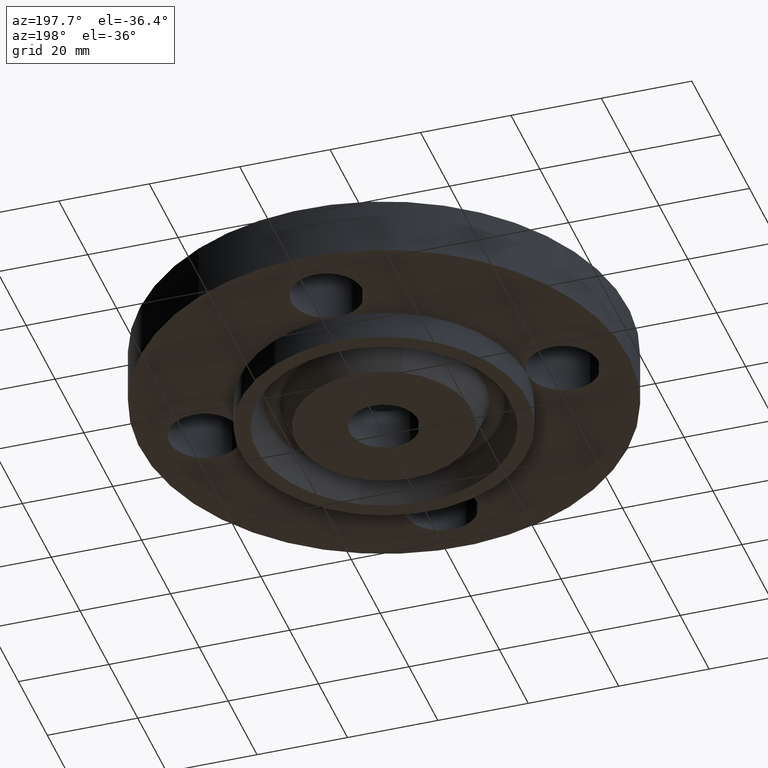
[diagram: clean part render]
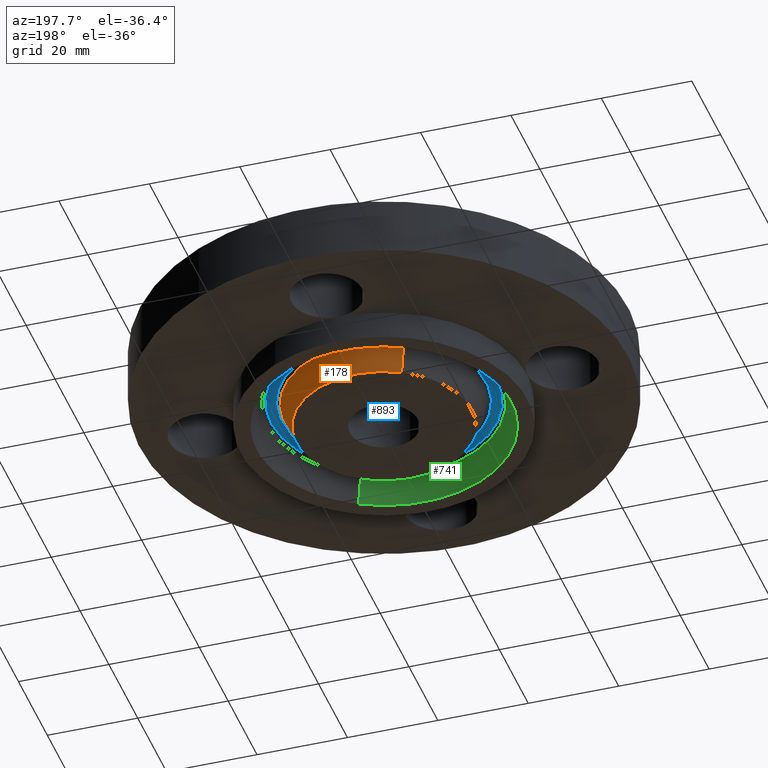
[diagram: same view with three faces highlighted in distinct colors, each labeled with its STEP entity id]
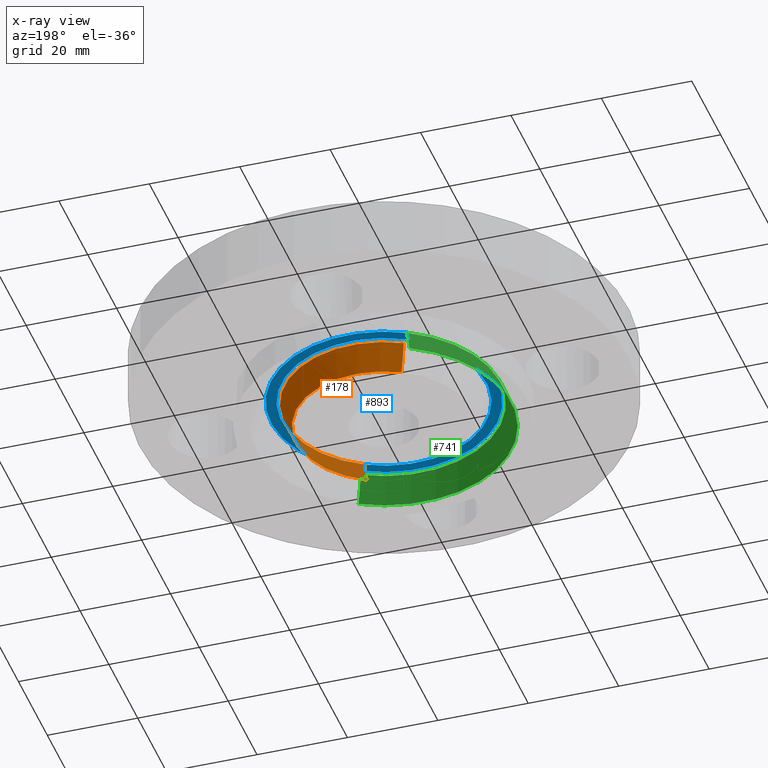
[diagram: x-ray of the same camera — body ghosted, the three highlighted faces saturated]
A machine part, auxiliary view with three faces highlighted in distinct colors.
The next image is the same camera in x-ray (body ghosted, the three faces saturated) — at least one of them is partly hidden behind the body in this view.
Their STEP definitions:

[orange] entity #178 — the highlighted conical surface has half-angle 23 deg.
#127=AXIS2_PLACEMENT_3D('Circle Axis2P3D',#125,#126,$) ;
#151=AXIS2_PLACEMENT_3D('Cone Axis2P3D',#148,#149,#150) ;
#162=AXIS2_PLACEMENT_3D('Circle Axis2P3D',#160,#161,$) ;
#125=CARTESIAN_POINT('Axis2P3D Location',(0.,-6.99353086378E-017,-0.250000000001)) ;
#129=CARTESIAN_POINT('Vertex',(-0.367060177995,0.67189914895,-0.250000000001)) ;
#131=CARTESIAN_POINT('Vertex',(0.367060177995,-0.67189914895,-0.250000000001)) ;
#148=CARTESIAN_POINT('Axis2P3D Location',(0.,0.,-0.310000000001)) ;
#153=CARTESIAN_POINT('Line Origine',(-0.390560863083,0.714916864455,-0.134519826118)) ;
#157=CARTESIAN_POINT('Vertex',(-0.41406154817,0.757934579959,-0.0190396522348)) ;
#160=CARTESIAN_POINT('Axis2P3D Location',(0.,0.,-0.0190396522348)) ;
#164=CARTESIAN_POINT('Vertex',(0.41406154817,-0.757934579959,-0.0190396522348)) ;
#167=CARTESIAN_POINT('Line Origine',(0.390560863083,-0.714916864455,-0.134519826118)) ;
#126=DIRECTION('Axis2P3D Direction',(0.,0.,-0.0393700787402)) ;
#149=DIRECTION('Axis2P3D Direction',(0.,0.,0.0393700787402)) ;
#150=DIRECTION('Axis2P3D XDirection',(-0.0188750212049,0.0345504945626,0.)) ;
#154=DIRECTION('Vector Direction',(-0.00737505833565,0.0134999537303,0.0362403485611)) ;
#161=DIRECTION('Axis2P3D Direction',(0.,0.,0.0393700787402)) ;
#168=DIRECTION('Vector Direction',(0.00737505833565,-0.0134999537303,0.0362403485611)) ;
#155=VECTOR('Line Direction',#154,0.0393700787402) ;
#169=VECTOR('Line Direction',#168,0.0393700787402) ;
#173=ORIENTED_EDGE('',*,*,#159,.F.) ;
#174=ORIENTED_EDGE('',*,*,#166,.F.) ;
#175=ORIENTED_EDGE('',*,*,#171,.T.) ;
#176=ORIENTED_EDGE('',*,*,#133,.F.) ;
#178=ADVANCED_FACE('PartBody',(#177),#152,.T.) ;
#128=CIRCLE('generated circle',#127,0.765625000003) ;
#163=CIRCLE('generated circle',#162,0.863661851173) ;
#152=CONICAL_SURFACE('Cone',#151,0.74015651103,0.401425727959) ;
#133=EDGE_CURVE('',#130,#132,#128,.T.) ;
#159=EDGE_CURVE('',#158,#130,#156,.F.) ;
#166=EDGE_CURVE('',#165,#158,#163,.T.) ;
#171=EDGE_CURVE('',#165,#132,#170,.F.) ;
#172=EDGE_LOOP('',(#173,#174,#175,#176)) ;
#177=FACE_OUTER_BOUND('',#172,.T.) ;
#156=LINE('Line',#153,#155) ;
#170=LINE('Line',#167,#169) ;
#130=VERTEX_POINT('',#129) ;
#132=VERTEX_POINT('',#131) ;
#158=VERTEX_POINT('',#157) ;
#165=VERTEX_POINT('',#164) ;

[blue] entity #893 — the highlighted planar face has unit normal (0, 0, -1).
#306=AXIS2_PLACEMENT_3D('Plane Axis2P3D',#303,#304,#305) ;
#799=AXIS2_PLACEMENT_3D('Circle Axis2P3D',#797,#798,$) ;
#818=AXIS2_PLACEMENT_3D('Circle Axis2P3D',#816,#817,$) ;
#877=AXIS2_PLACEMENT_3D('Circle Axis2P3D',#875,#876,$) ;
#886=AXIS2_PLACEMENT_3D('Circle Axis2P3D',#884,#885,$) ;
#303=CARTESIAN_POINT('Axis2P3D Location',(0.,1.25000000001,0.)) ;
#794=CARTESIAN_POINT('Vertex',(0.471070288742,-0.862288379607,-6.99353086378E-017)) ;
#797=CARTESIAN_POINT('Axis2P3D Location',(0.,0.,-6.99353086378E-017)) ;
#801=CARTESIAN_POINT('Vertex',(-0.471070288742,0.862288379607,-6.99353086378E-017)) ;
#816=CARTESIAN_POINT('Axis2P3D Location',(0.,0.,-6.99353086378E-017)) ;
#875=CARTESIAN_POINT('Axis2P3D Location',(0.,0.,0.)) ;
#879=CARTESIAN_POINT('Vertex',(0.427852596144,-0.783178923945,7.43062654277E-017)) ;
#881=CARTESIAN_POINT('Vertex',(-0.427852596144,0.783178923945,7.43062654277E-017)) ;
#884=CARTESIAN_POINT('Axis2P3D Location',(0.,0.,0.)) ;
#304=DIRECTION('Axis2P3D Direction',(0.,0.,-0.0393700787402)) ;
#305=DIRECTION('Axis2P3D XDirection',(0.0393700787402,0.,0.)) ;
#798=DIRECTION('Axis2P3D Direction',(0.,0.,0.0393700787402)) ;
#817=DIRECTION('Axis2P3D Direction',(0.,0.,0.0393700787402)) ;
#876=DIRECTION('Axis2P3D Direction',(0.,0.,-0.0393700787402)) ;
#885=DIRECTION('Axis2P3D Direction',(0.,0.,-0.0393700787402)) ;
#872=ORIENTED_EDGE('',*,*,#820,.F.) ;
#873=ORIENTED_EDGE('',*,*,#803,.F.) ;
#890=ORIENTED_EDGE('',*,*,#883,.T.) ;
#891=ORIENTED_EDGE('',*,*,#888,.T.) ;
#892=FACE_BOUND('',#889,.T.) ;
#893=ADVANCED_FACE('PartBody',(#874,#892),#307,.T.) ;
#800=CIRCLE('generated circle',#799,0.982572372164) ;
#819=CIRCLE('generated circle',#818,0.982572372164) ;
#878=CIRCLE('generated circle',#877,0.892427627843) ;
#887=CIRCLE('generated circle',#886,0.892427627843) ;
#803=EDGE_CURVE('',#795,#802,#800,.T.) ;
#820=EDGE_CURVE('',#802,#795,#819,.T.) ;
#883=EDGE_CURVE('',#880,#882,#878,.F.) ;
#888=EDGE_CURVE('',#882,#880,#887,.F.) ;
#871=EDGE_LOOP('',(#872,#873)) ;
#889=EDGE_LOOP('',(#890,#891)) ;
#874=FACE_OUTER_BOUND('',#871,.T.) ;
#307=PLANE('',#306) ;
#795=VERTEX_POINT('',#794) ;
#802=VERTEX_POINT('',#801) ;
#880=VERTEX_POINT('',#879) ;
#882=VERTEX_POINT('',#881) ;

[green] entity #741 — the highlighted conical surface has half-angle 23 deg.
#211=AXIS2_PLACEMENT_3D('Circle Axis2P3D',#209,#210,$) ;
#702=AXIS2_PLACEMENT_3D('Cone Axis2P3D',#699,#700,#701) ;
#732=AXIS2_PLACEMENT_3D('Circle Axis2P3D',#730,#731,$) ;
#209=CARTESIAN_POINT('Axis2P3D Location',(1.04902962957E-016,2.79741234551E-016,-0.250000000001)) ;
#213=CARTESIAN_POINT('Vertex',(0.531862706891,-0.973568154601,-0.250000000001)) ;
#215=CARTESIAN_POINT('Vertex',(-0.531862706891,0.973568154601,-0.250000000001)) ;
#699=CARTESIAN_POINT('Axis2P3D Location',(0.,0.,-0.0190396522348)) ;
#704=CARTESIAN_POINT('Line Origine',(0.508362021804,-0.930550439096,-0.134519826118)) ;
#708=CARTESIAN_POINT('Vertex',(0.484861336716,-0.887532723592,-0.0190396522348)) ;
#715=CARTESIAN_POINT('Vertex',(-0.484861336716,0.887532723592,-0.0190396522348)) ;
#718=CARTESIAN_POINT('Line Origine',(-0.508362021804,0.930550439096,-0.134519826118)) ;
#730=CARTESIAN_POINT('Axis2P3D Location',(0.,0.,-0.0190396522348)) ;
#210=DIRECTION('Axis2P3D Direction',(0.,0.,-0.0393700787402)) ;
#700=DIRECTION('Axis2P3D Direction',(-0.,-0.,-0.0393700787402)) ;
#701=DIRECTION('Axis2P3D XDirection',(0.0188750212049,-0.0345504945626,0.)) ;
#705=DIRECTION('Vector Direction',(0.00737505833565,-0.0134999537303,-0.0362403485611)) ;
#719=DIRECTION('Vector Direction',(-0.00737505833565,0.0134999537303,-0.0362403485611)) ;
#731=DIRECTION('Axis2P3D Direction',(0.,0.,-0.0393700787402)) ;
#706=VECTOR('Line Direction',#705,0.0393700787402) ;
#720=VECTOR('Line Direction',#719,0.0393700787402) ;
#736=ORIENTED_EDGE('',*,*,#217,.T.) ;
#737=ORIENTED_EDGE('',*,*,#722,.T.) ;
#738=ORIENTED_EDGE('',*,*,#734,.T.) ;
#739=ORIENTED_EDGE('',*,*,#710,.F.) ;
#741=ADVANCED_FACE('PartBody',(#740),#703,.F.) ;
#212=CIRCLE('generated circle',#211,1.109375) ;
#733=CIRCLE('generated circle',#732,1.01133814883) ;
#703=CONICAL_SURFACE('Cone',#702,1.01133814883,0.401425727959) ;
#217=EDGE_CURVE('',#214,#216,#212,.T.) ;
#710=EDGE_CURVE('',#214,#709,#707,.F.) ;
#722=EDGE_CURVE('',#216,#716,#721,.F.) ;
#734=EDGE_CURVE('',#716,#709,#733,.F.) ;
#735=EDGE_LOOP('',(#736,#737,#738,#739)) ;
#740=FACE_OUTER_BOUND('',#735,.T.) ;
#707=LINE('Line',#704,#706) ;
#721=LINE('Line',#718,#720) ;
#214=VERTEX_POINT('',#213) ;
#216=VERTEX_POINT('',#215) ;
#709=VERTEX_POINT('',#708) ;
#716=VERTEX_POINT('',#715) ;